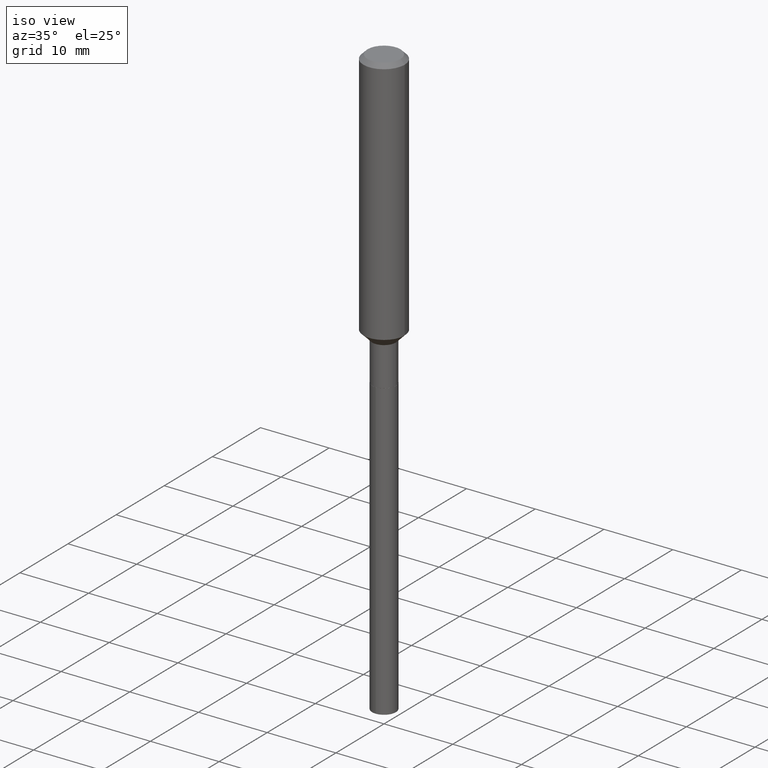
[diagram: clean part render]
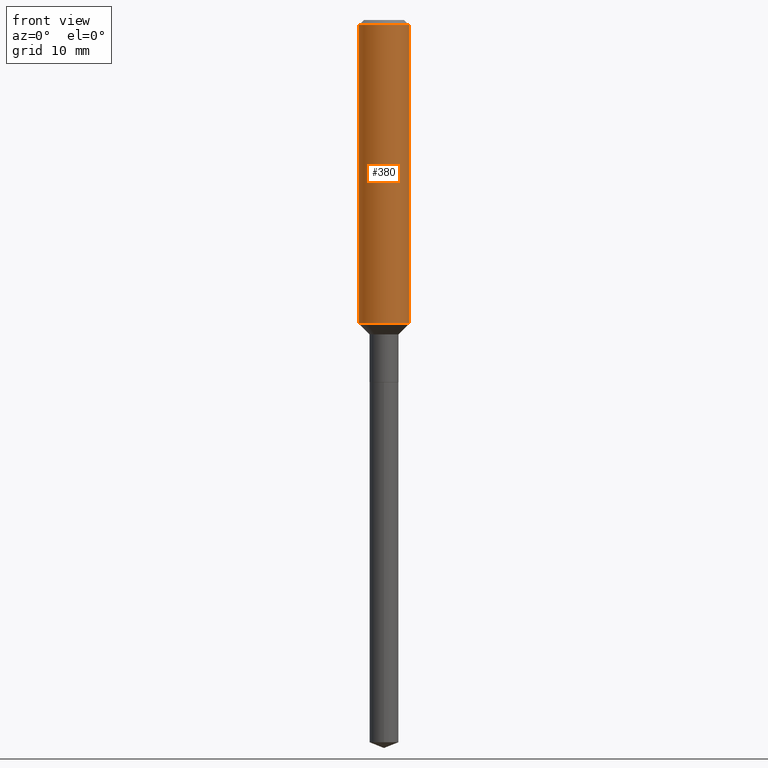
[diagram: tour spotlight — one face highlighted and labeled with its STEP entity id]
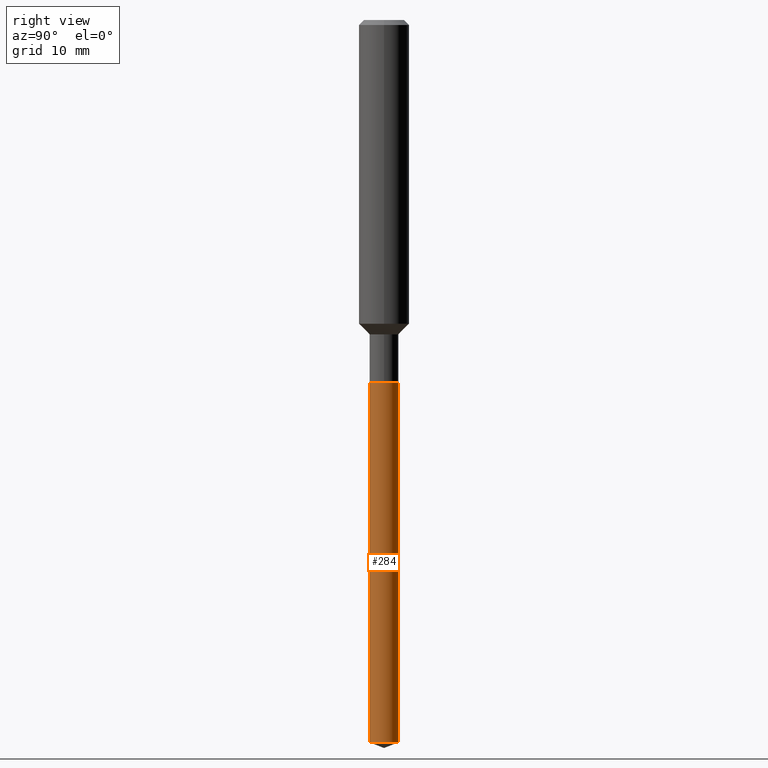
[diagram: tour spotlight — one face highlighted and labeled with its STEP entity id]
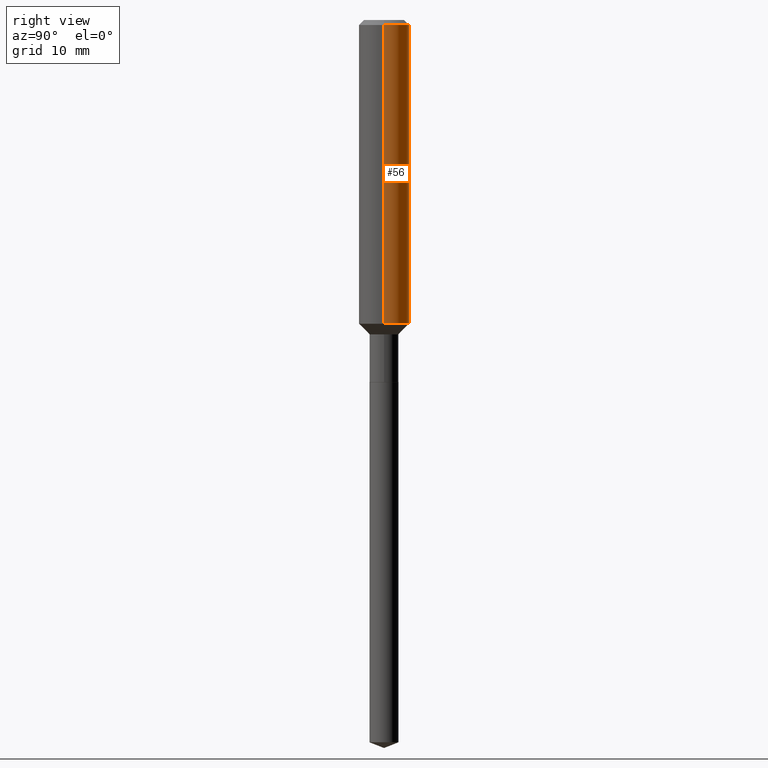
[diagram: tour spotlight — one face highlighted and labeled with its STEP entity id]
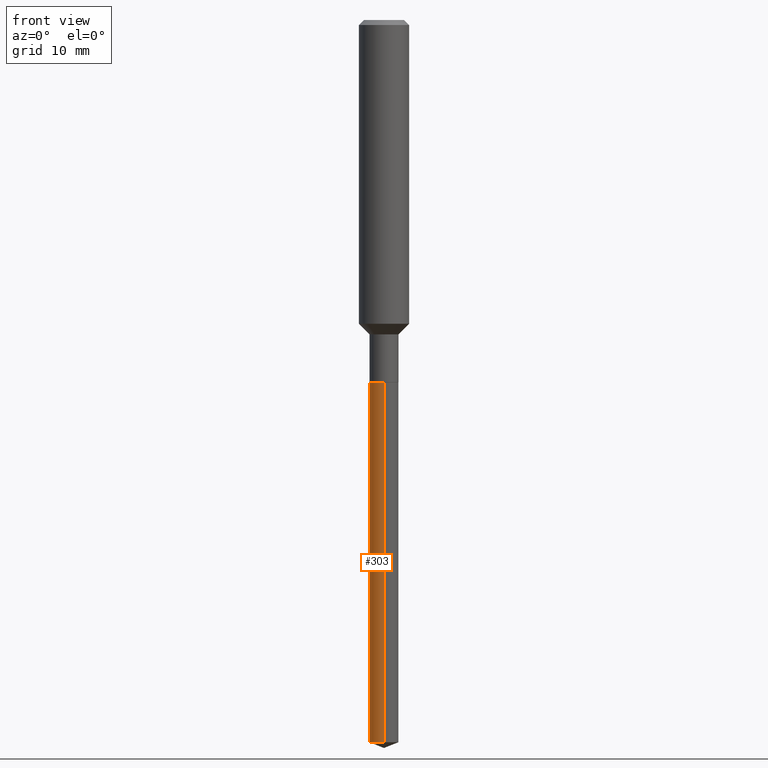
[diagram: tour spotlight — one face highlighted and labeled with its STEP entity id]
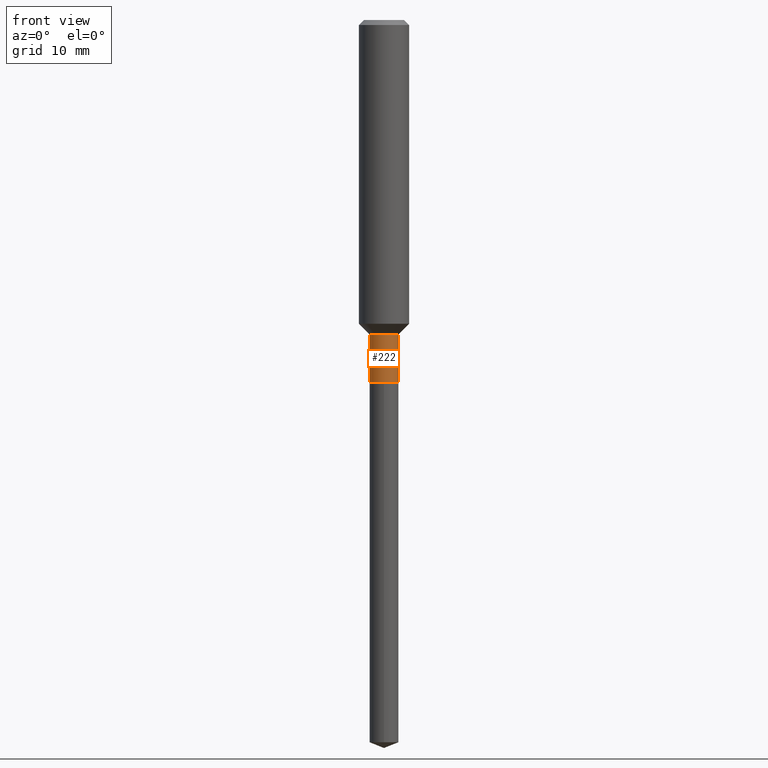
[diagram: tour spotlight — one face highlighted and labeled with its STEP entity id]
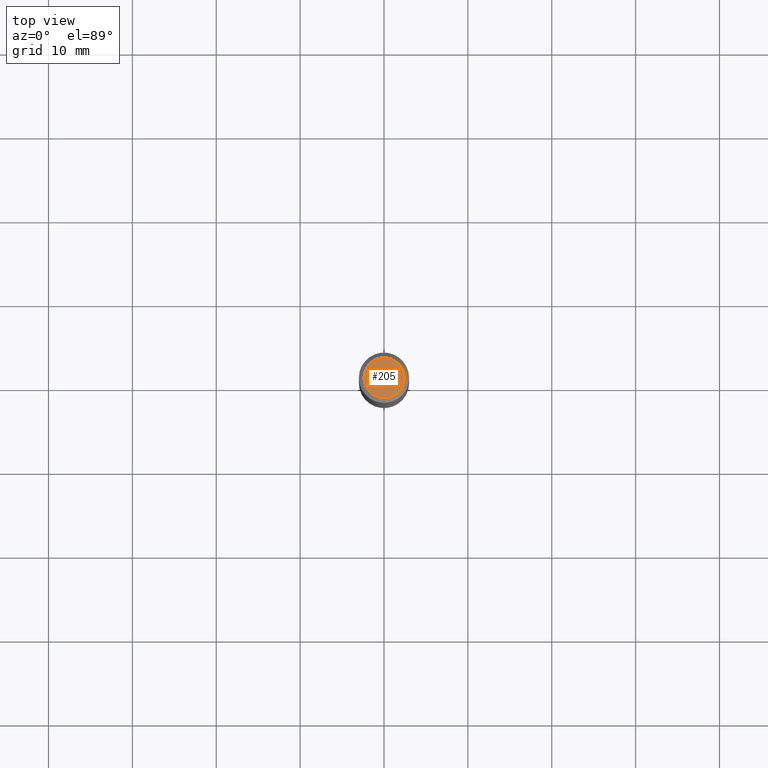
[diagram: tour spotlight — one face highlighted and labeled with its STEP entity id]
A machine part: a face-by-face anatomy tour. The part has 17 B-rep faces; the first image is the clean iso view, then the 6 largest visible faces are spotlighted one at a time (largest first), each with its STEP entity span.

Face 1 — front view, entity #380. In plain terms, the highlighted cylindrical surface (edge-blend (fillet) strip) has radius 2.9997 mm, axis along (-0, 0, 1).
Definition (entity closure, byte-faithful):
#17 = DIRECTION ( 'NONE',  ( -2.445468806185136877E-29, 3.491481338843145188E-15, 1.000000000000000000 ) ) ;
#41 = LINE ( 'NONE', #462, #325 ) ;
#50 = ORIENTED_EDGE ( 'NONE', *, *, #354, .F. ) ;
#61 = ORIENTED_EDGE ( 'NONE', *, *, #312, .T. ) ;
#64 = VECTOR ( 'NONE', #17, 39.37007874015748143 ) ;
#66 = DIRECTION ( 'NONE',  ( 1.000000000000000000, -6.982962677686263555E-15, 0.000000000000000000 ) ) ;
#87 = DIRECTION ( 'NONE',  ( -2.445468806185136597E-29, 3.491481338843145583E-15, 1.000000000000000000 ) ) ;
#102 = VERTEX_POINT ( 'NONE', #432 ) ;
#107 = AXIS2_PLACEMENT_3D ( 'NONE', #321, #167, #237 ) ;
#109 = EDGE_CURVE ( 'NONE', #466, #123, #450, .T. ) ;
#116 = DIRECTION ( 'NONE',  ( 1.000000000000000000, -6.982962677686266711E-15, 0.000000000000000000 ) ) ;
#123 = VERTEX_POINT ( 'NONE', #388 ) ;
#124 = FACE_OUTER_BOUND ( 'NONE', #270, .T. ) ;
#133 = LINE ( 'NONE', #362, #64 ) ;
#136 = CARTESIAN_POINT ( 'NONE',  ( -0.1180999999999999966, -1.690636747939508715E-15, -0.02362000000000014435 ) ) ;
#140 = AXIS2_PLACEMENT_3D ( 'NONE', #337, #210, #66 ) ;
#150 = AXIS2_PLACEMENT_3D ( 'NONE', #192, #87, #116 ) ;
#152 = EDGE_CURVE ( 'NONE', #323, #102, #291, .T. ) ;
#167 = DIRECTION ( 'NONE',  ( -2.445468806185136597E-29, 3.491481338843145583E-15, 1.000000000000000000 ) ) ;
#192 = CARTESIAN_POINT ( 'NONE',  ( 5.776197320209328408E-31, -8.246878922347560526E-17, -0.02362000000000014435 ) ) ;
#210 = DIRECTION ( 'NONE',  ( -2.445468806185136597E-29, 3.491481338843145583E-15, 1.000000000000000000 ) ) ;
#228 = CARTESIAN_POINT ( 'NONE',  ( -0.1181000000000001632, -4.137955677588221748E-15, -1.425499999999999101 ) ) ;
#237 = DIRECTION ( 'NONE',  ( 1.000000000000000000, -6.982962677686266711E-15, 4.876176775795936353E-29 ) ) ;
#270 = EDGE_LOOP ( 'NONE', ( #50, #392, #61, #394 ) ) ;
#291 = CIRCLE ( 'NONE', #140, 0.1181000000000001632 ) ;
#312 = EDGE_CURVE ( 'NONE', #102, #123, #41, .T. ) ;
#321 = CARTESIAN_POINT ( 'NONE',  ( 0.000000000000000000, 0.000000000000000000, 0.000000000000000000 ) ) ;
#323 = VERTEX_POINT ( 'NONE', #228 ) ;
#325 = VECTOR ( 'NONE', #421, 39.37007874015748143 ) ;
#337 = CARTESIAN_POINT ( 'NONE',  ( 3.486015783216909425E-29, -4.977106648520900734E-15, -1.425499999999999101 ) ) ;
#354 = EDGE_CURVE ( 'NONE', #323, #466, #133, .T. ) ;
#362 = CARTESIAN_POINT ( 'NONE',  ( -0.1181000000000000799, 8.391509709326788873E-16, -5.809262341591047988E-30 ) ) ;
#380 = ADVANCED_FACE ( 'NONE', ( #124 ), #480, .T. ) ;
#388 = CARTESIAN_POINT ( 'NONE',  ( 0.1180999999999999966, -9.071566814582237199E-16, -0.02362000000000014435 ) ) ;
#392 = ORIENTED_EDGE ( 'NONE', *, *, #152, .T. ) ;
#394 = ORIENTED_EDGE ( 'NONE', *, *, #109, .F. ) ;
#421 = DIRECTION ( 'NONE',  ( -2.445468806185136877E-29, 3.491481338843145188E-15, 1.000000000000000000 ) ) ;
#432 = CARTESIAN_POINT ( 'NONE',  ( 0.1181000000000001632, -5.801794540755649786E-15, -1.425499999999999101 ) ) ;
#450 = CIRCLE ( 'NONE', #150, 0.1180999999999999966 ) ;
#462 = CARTESIAN_POINT ( 'NONE',  ( 0.1181000000000000799, -8.246878922347486570E-16, 5.758764772215004644E-30 ) ) ;
#466 = VERTEX_POINT ( 'NONE', #136 ) ;
#480 = CYLINDRICAL_SURFACE ( 'NONE', #107, 0.1181000000000000799 ) ;

Face 2 — right view, entity #284. In plain terms, the highlighted cylindrical surface (edge-blend (fillet) strip) has radius 1.7272 mm, axis along (-0, 0, 1).
Definition (entity closure, byte-faithful):
#2 = CIRCLE ( 'NONE', #305, 0.06800000000000000488 ) ;
#7 = VECTOR ( 'NONE', #245, 39.37007874015748143 ) ;
#12 = VECTOR ( 'NONE', #85, 39.37007874015748143 ) ;
#33 = DIRECTION ( 'NONE',  ( -2.449286412765611293E-29, 3.486014308935233053E-15, 1.000000000000000000 ) ) ;
#43 = AXIS2_PLACEMENT_3D ( 'NONE', #324, #352, #224 ) ;
#59 = DIRECTION ( 'NONE',  ( -2.449286412765611293E-29, 3.486014308935233053E-15, 1.000000000000000000 ) ) ;
#85 = DIRECTION ( 'NONE',  ( -2.449286412765611293E-29, 3.486014308935233447E-15, 1.000000000000000000 ) ) ;
#88 = ORIENTED_EDGE ( 'NONE', *, *, #479, .T. ) ;
#93 = EDGE_LOOP ( 'NONE', ( #433, #88, #233, #162 ) ) ;
#94 = CYLINDRICAL_SURFACE ( 'NONE', #43, 0.06800000000000000488 ) ;
#115 = EDGE_CURVE ( 'NONE', #238, #160, #229, .T. ) ;
#127 = CARTESIAN_POINT ( 'NONE',  ( 4.831690603169513859E-16, 0.06799999999999407907, -1.699699999999999322 ) ) ;
#137 = CARTESIAN_POINT ( 'NONE',  ( -4.748414620825831994E-16, -0.06800000000001184264, -3.390214087658182773 ) ) ;
#139 = CARTESIAN_POINT ( 'NONE',  ( -4.748414620826246146E-16, -0.06800000000000594458, -1.699699999999998878 ) ) ;
#160 = VERTEX_POINT ( 'NONE', #139 ) ;
#162 = ORIENTED_EDGE ( 'NONE', *, *, #115, .F. ) ;
#173 = LINE ( 'NONE', #331, #7 ) ;
#224 = DIRECTION ( 'NONE',  ( -6.982962677686265922E-15, -1.000000000000000000, 4.017423520094504617E-15 ) ) ;
#229 = LINE ( 'NONE', #459, #12 ) ;
#233 = ORIENTED_EDGE ( 'NONE', *, *, #386, .F. ) ;
#236 = VERTEX_POINT ( 'NONE', #483 ) ;
#238 = VERTEX_POINT ( 'NONE', #137 ) ;
#241 = DIRECTION ( 'NONE',  ( -6.982962677686265922E-15, -1.000000000000000000, 4.017423520094504617E-15 ) ) ;
#245 = DIRECTION ( 'NONE',  ( -2.449286412765611293E-29, 3.486014308935233447E-15, 1.000000000000000000 ) ) ;
#276 = EDGE_CURVE ( 'NONE', #238, #236, #2, .T. ) ;
#284 = ADVANCED_FACE ( 'NONE', ( #439 ), #94, .T. ) ;
#305 = AXIS2_PLACEMENT_3D ( 'NONE', #381, #33, #322 ) ;
#322 = DIRECTION ( 'NONE',  ( -6.982962677686265922E-15, -1.000000000000000000, 0.000000000000000000 ) ) ;
#324 = CARTESIAN_POINT ( 'NONE',  ( 4.156563329872874404E-29, -5.934470831631691157E-15, -1.699699999999999100 ) ) ;
#331 = CARTESIAN_POINT ( 'NONE',  ( 4.831690603169095763E-16, 0.06799999999999406519, -1.699699999999999322 ) ) ;
#352 = DIRECTION ( 'NONE',  ( -2.449286412765611293E-29, 3.486014308935233053E-15, 1.000000000000000000 ) ) ;
#381 = CARTESIAN_POINT ( 'NONE',  ( 8.297116515362916706E-29, -1.182762713066471135E-14, -3.390214087658182773 ) ) ;
#386 = EDGE_CURVE ( 'NONE', #160, #402, #465, .T. ) ;
#395 = CARTESIAN_POINT ( 'NONE',  ( 4.156563329872874404E-29, -5.934470831631691157E-15, -1.699699999999999100 ) ) ;
#402 = VERTEX_POINT ( 'NONE', #127 ) ;
#433 = ORIENTED_EDGE ( 'NONE', *, *, #276, .T. ) ;
#439 = FACE_OUTER_BOUND ( 'NONE', #93, .T. ) ;
#444 = AXIS2_PLACEMENT_3D ( 'NONE', #395, #59, #241 ) ;
#459 = CARTESIAN_POINT ( 'NONE',  ( -4.748414620826245160E-16, -0.06800000000000593070, -1.699699999999998878 ) ) ;
#465 = CIRCLE ( 'NONE', #444, 0.06800000000000000488 ) ;
#479 = EDGE_CURVE ( 'NONE', #236, #402, #173, .T. ) ;
#483 = CARTESIAN_POINT ( 'NONE',  ( 4.831690603169511887E-16, 0.06799999999998819489, -3.390214087658182773 ) ) ;

Face 3 — right view, entity #56. In plain terms, the highlighted cylindrical surface (edge-blend (fillet) strip) has radius 2.9997 mm, axis along (-0, 0, 1).
Definition (entity closure, byte-faithful):
#15 = CARTESIAN_POINT ( 'NONE',  ( 3.486015783216909425E-29, -4.977106648520900734E-15, -1.425499999999999101 ) ) ;
#17 = DIRECTION ( 'NONE',  ( -2.445468806185136877E-29, 3.491481338843145188E-15, 1.000000000000000000 ) ) ;
#41 = LINE ( 'NONE', #462, #325 ) ;
#47 = EDGE_LOOP ( 'NONE', ( #206, #96, #239, #265 ) ) ;
#56 = ADVANCED_FACE ( 'NONE', ( #189 ), #464, .T. ) ;
#64 = VECTOR ( 'NONE', #17, 39.37007874015748143 ) ;
#80 = AXIS2_PLACEMENT_3D ( 'NONE', #15, #473, #170 ) ;
#96 = ORIENTED_EDGE ( 'NONE', *, *, #354, .T. ) ;
#102 = VERTEX_POINT ( 'NONE', #432 ) ;
#114 = DIRECTION ( 'NONE',  ( -2.445468806185136597E-29, 3.491481338843145583E-15, 1.000000000000000000 ) ) ;
#123 = VERTEX_POINT ( 'NONE', #388 ) ;
#125 = DIRECTION ( 'NONE',  ( 1.000000000000000000, -6.982962677686266711E-15, 4.876176775795936353E-29 ) ) ;
#133 = LINE ( 'NONE', #362, #64 ) ;
#136 = CARTESIAN_POINT ( 'NONE',  ( -0.1180999999999999966, -1.690636747939508715E-15, -0.02362000000000014435 ) ) ;
#138 = DIRECTION ( 'NONE',  ( 1.000000000000000000, -6.982962677686266711E-15, 0.000000000000000000 ) ) ;
#158 = CIRCLE ( 'NONE', #409, 0.1180999999999999966 ) ;
#170 = DIRECTION ( 'NONE',  ( 1.000000000000000000, -6.982962677686263555E-15, 0.000000000000000000 ) ) ;
#188 = AXIS2_PLACEMENT_3D ( 'NONE', #350, #114, #125 ) ;
#189 = FACE_OUTER_BOUND ( 'NONE', #47, .T. ) ;
#206 = ORIENTED_EDGE ( 'NONE', *, *, #422, .T. ) ;
#212 = CARTESIAN_POINT ( 'NONE',  ( 5.776197320209328408E-31, -8.246878922347560526E-17, -0.02362000000000014435 ) ) ;
#228 = CARTESIAN_POINT ( 'NONE',  ( -0.1181000000000001632, -4.137955677588221748E-15, -1.425499999999999101 ) ) ;
#239 = ORIENTED_EDGE ( 'NONE', *, *, #435, .F. ) ;
#265 = ORIENTED_EDGE ( 'NONE', *, *, #312, .F. ) ;
#267 = CIRCLE ( 'NONE', #80, 0.1181000000000001632 ) ;
#312 = EDGE_CURVE ( 'NONE', #102, #123, #41, .T. ) ;
#323 = VERTEX_POINT ( 'NONE', #228 ) ;
#325 = VECTOR ( 'NONE', #421, 39.37007874015748143 ) ;
#350 = CARTESIAN_POINT ( 'NONE',  ( 0.000000000000000000, 0.000000000000000000, 0.000000000000000000 ) ) ;
#354 = EDGE_CURVE ( 'NONE', #323, #466, #133, .T. ) ;
#362 = CARTESIAN_POINT ( 'NONE',  ( -0.1181000000000000799, 8.391509709326788873E-16, -5.809262341591047988E-30 ) ) ;
#388 = CARTESIAN_POINT ( 'NONE',  ( 0.1180999999999999966, -9.071566814582237199E-16, -0.02362000000000014435 ) ) ;
#409 = AXIS2_PLACEMENT_3D ( 'NONE', #212, #470, #138 ) ;
#421 = DIRECTION ( 'NONE',  ( -2.445468806185136877E-29, 3.491481338843145188E-15, 1.000000000000000000 ) ) ;
#422 = EDGE_CURVE ( 'NONE', #102, #323, #267, .T. ) ;
#432 = CARTESIAN_POINT ( 'NONE',  ( 0.1181000000000001632, -5.801794540755649786E-15, -1.425499999999999101 ) ) ;
#435 = EDGE_CURVE ( 'NONE', #123, #466, #158, .T. ) ;
#462 = CARTESIAN_POINT ( 'NONE',  ( 0.1181000000000000799, -8.246878922347486570E-16, 5.758764772215004644E-30 ) ) ;
#464 = CYLINDRICAL_SURFACE ( 'NONE', #188, 0.1181000000000000799 ) ;
#466 = VERTEX_POINT ( 'NONE', #136 ) ;
#470 = DIRECTION ( 'NONE',  ( -2.445468806185136597E-29, 3.491481338843145583E-15, 1.000000000000000000 ) ) ;
#473 = DIRECTION ( 'NONE',  ( -2.445468806185136597E-29, 3.491481338843145583E-15, 1.000000000000000000 ) ) ;

Face 4 — front view, entity #303. In plain terms, the highlighted cylindrical surface (edge-blend (fillet) strip) has radius 1.7272 mm, axis along (-0, 0, 1).
Definition (entity closure, byte-faithful):
#5 = EDGE_CURVE ( 'NONE', #236, #238, #112, .T. ) ;
#7 = VECTOR ( 'NONE', #245, 39.37007874015748143 ) ;
#12 = VECTOR ( 'NONE', #85, 39.37007874015748143 ) ;
#85 = DIRECTION ( 'NONE',  ( -2.449286412765611293E-29, 3.486014308935233447E-15, 1.000000000000000000 ) ) ;
#86 = ORIENTED_EDGE ( 'NONE', *, *, #479, .F. ) ;
#105 = AXIS2_PLACEMENT_3D ( 'NONE', #385, #391, #271 ) ;
#112 = CIRCLE ( 'NONE', #397, 0.06800000000000000488 ) ;
#115 = EDGE_CURVE ( 'NONE', #238, #160, #229, .T. ) ;
#127 = CARTESIAN_POINT ( 'NONE',  ( 4.831690603169513859E-16, 0.06799999999999407907, -1.699699999999999322 ) ) ;
#137 = CARTESIAN_POINT ( 'NONE',  ( -4.748414620825831994E-16, -0.06800000000001184264, -3.390214087658182773 ) ) ;
#139 = CARTESIAN_POINT ( 'NONE',  ( -4.748414620826246146E-16, -0.06800000000000594458, -1.699699999999998878 ) ) ;
#160 = VERTEX_POINT ( 'NONE', #139 ) ;
#172 = EDGE_CURVE ( 'NONE', #402, #160, #207, .T. ) ;
#173 = LINE ( 'NONE', #331, #7 ) ;
#207 = CIRCLE ( 'NONE', #420, 0.06800000000000000488 ) ;
#229 = LINE ( 'NONE', #459, #12 ) ;
#236 = VERTEX_POINT ( 'NONE', #483 ) ;
#238 = VERTEX_POINT ( 'NONE', #137 ) ;
#245 = DIRECTION ( 'NONE',  ( -2.449286412765611293E-29, 3.486014308935233447E-15, 1.000000000000000000 ) ) ;
#247 = CARTESIAN_POINT ( 'NONE',  ( 4.156563329872874404E-29, -5.934470831631691157E-15, -1.699699999999999100 ) ) ;
#262 = DIRECTION ( 'NONE',  ( -6.982962677686265922E-15, -1.000000000000000000, 0.000000000000000000 ) ) ;
#271 = DIRECTION ( 'NONE',  ( -6.982962677686265922E-15, -1.000000000000000000, 4.017423520094504617E-15 ) ) ;
#274 = DIRECTION ( 'NONE',  ( -2.449286412765611293E-29, 3.486014308935233053E-15, 1.000000000000000000 ) ) ;
#294 = DIRECTION ( 'NONE',  ( -6.982962677686265922E-15, -1.000000000000000000, 4.017423520094504617E-15 ) ) ;
#303 = ADVANCED_FACE ( 'NONE', ( #467 ), #457, .T. ) ;
#311 = ORIENTED_EDGE ( 'NONE', *, *, #5, .T. ) ;
#331 = CARTESIAN_POINT ( 'NONE',  ( 4.831690603169095763E-16, 0.06799999999999406519, -1.699699999999999322 ) ) ;
#333 = EDGE_LOOP ( 'NONE', ( #86, #311, #338, #359 ) ) ;
#338 = ORIENTED_EDGE ( 'NONE', *, *, #115, .T. ) ;
#358 = CARTESIAN_POINT ( 'NONE',  ( 8.297116515362916706E-29, -1.182762713066471135E-14, -3.390214087658182773 ) ) ;
#359 = ORIENTED_EDGE ( 'NONE', *, *, #172, .F. ) ;
#385 = CARTESIAN_POINT ( 'NONE',  ( 4.156563329872874404E-29, -5.934470831631691157E-15, -1.699699999999999100 ) ) ;
#391 = DIRECTION ( 'NONE',  ( -2.449286412765611293E-29, 3.486014308935233053E-15, 1.000000000000000000 ) ) ;
#397 = AXIS2_PLACEMENT_3D ( 'NONE', #358, #274, #262 ) ;
#402 = VERTEX_POINT ( 'NONE', #127 ) ;
#420 = AXIS2_PLACEMENT_3D ( 'NONE', #247, #440, #294 ) ;
#440 = DIRECTION ( 'NONE',  ( -2.449286412765611293E-29, 3.486014308935233053E-15, 1.000000000000000000 ) ) ;
#457 = CYLINDRICAL_SURFACE ( 'NONE', #105, 0.06800000000000000488 ) ;
#459 = CARTESIAN_POINT ( 'NONE',  ( -4.748414620826245160E-16, -0.06800000000000593070, -1.699699999999998878 ) ) ;
#467 = FACE_OUTER_BOUND ( 'NONE', #333, .T. ) ;
#479 = EDGE_CURVE ( 'NONE', #236, #402, #173, .T. ) ;
#483 = CARTESIAN_POINT ( 'NONE',  ( 4.831690603169511887E-16, 0.06799999999998819489, -3.390214087658182773 ) ) ;

Face 5 — front view, entity #222. In plain terms, the highlighted cylindrical surface (edge-blend (fillet) strip) has radius 1.7272 mm, axis along (-0, 0, 1).
Definition (entity closure, byte-faithful):
#6 = DIRECTION ( 'NONE',  ( -2.445468806185136877E-29, 3.491481338843145188E-15, 1.000000000000000000 ) ) ;
#9 = ORIENTED_EDGE ( 'NONE', *, *, #343, .T. ) ;
#23 = CIRCLE ( 'NONE', #147, 0.06799999999999997713 ) ;
#51 = LINE ( 'NONE', #234, #434 ) ;
#58 = ORIENTED_EDGE ( 'NONE', *, *, #300, .F. ) ;
#62 = CARTESIAN_POINT ( 'NONE',  ( 0.06799999999999997713, -5.626871325679608817E-15, -1.475599999999999135 ) ) ;
#63 = CARTESIAN_POINT ( 'NONE',  ( 0.000000000000000000, 0.000000000000000000, 0.000000000000000000 ) ) ;
#68 = EDGE_LOOP ( 'NONE', ( #58, #190, #9, #156 ) ) ;
#103 = CARTESIAN_POINT ( 'NONE',  ( 4.155340595469782163E-29, -5.932725090962269653E-15, -1.699199999999999156 ) ) ;
#121 = VERTEX_POINT ( 'NONE', #272 ) ;
#144 = CYLINDRICAL_SURFACE ( 'NONE', #347, 0.06800000000000000488 ) ;
#147 = AXIS2_PLACEMENT_3D ( 'NONE', #263, #458, #307 ) ;
#156 = ORIENTED_EDGE ( 'NONE', *, *, #340, .F. ) ;
#187 = EDGE_CURVE ( 'NONE', #407, #282, #387, .T. ) ;
#190 = ORIENTED_EDGE ( 'NONE', *, *, #187, .T. ) ;
#201 = DIRECTION ( 'NONE',  ( -2.445468806185136877E-29, 3.491481338843145188E-15, 1.000000000000000000 ) ) ;
#214 = DIRECTION ( 'NONE',  ( 1.000000000000000000, -6.982962677686260400E-15, 0.000000000000000000 ) ) ;
#222 = ADVANCED_FACE ( 'NONE', ( #437 ), #144, .T. ) ;
#234 = CARTESIAN_POINT ( 'NONE',  ( -0.06800000000000000488, 4.831690603168681611E-16, -3.344875861373336055E-30 ) ) ;
#254 = DIRECTION ( 'NONE',  ( -2.445468806185136597E-29, 3.491481338843145583E-15, 1.000000000000000000 ) ) ;
#263 = CARTESIAN_POINT ( 'NONE',  ( 3.608533770406785376E-29, -5.152029863596943281E-15, -1.475599999999999135 ) ) ;
#268 = LINE ( 'NONE', #355, #463 ) ;
#272 = CARTESIAN_POINT ( 'NONE',  ( -0.06799999999999997713, -5.059208416962737911E-15, -1.475599999999999135 ) ) ;
#280 = CARTESIAN_POINT ( 'NONE',  ( -0.06800000000000001876, -5.059208416962737911E-15, -1.699199999999999156 ) ) ;
#281 = DIRECTION ( 'NONE',  ( -2.445468806185136597E-29, 3.491481338843145583E-15, 1.000000000000000000 ) ) ;
#282 = VERTEX_POINT ( 'NONE', #283 ) ;
#283 = CARTESIAN_POINT ( 'NONE',  ( 0.06800000000000000488, -6.407566553044935190E-15, -1.699199999999999156 ) ) ;
#300 = EDGE_CURVE ( 'NONE', #407, #121, #51, .T. ) ;
#302 = AXIS2_PLACEMENT_3D ( 'NONE', #103, #281, #214 ) ;
#307 = DIRECTION ( 'NONE',  ( 1.000000000000000000, -6.982962677686262766E-15, 0.000000000000000000 ) ) ;
#340 = EDGE_CURVE ( 'NONE', #121, #364, #23, .T. ) ;
#343 = EDGE_CURVE ( 'NONE', #282, #364, #268, .T. ) ;
#347 = AXIS2_PLACEMENT_3D ( 'NONE', #63, #254, #441 ) ;
#355 = CARTESIAN_POINT ( 'NONE',  ( 0.06800000000000000488, -4.748414620826661284E-16, 3.315800207541236003E-30 ) ) ;
#364 = VERTEX_POINT ( 'NONE', #62 ) ;
#387 = CIRCLE ( 'NONE', #302, 0.06800000000000000488 ) ;
#407 = VERTEX_POINT ( 'NONE', #280 ) ;
#434 = VECTOR ( 'NONE', #6, 39.37007874015748143 ) ;
#437 = FACE_OUTER_BOUND ( 'NONE', #68, .T. ) ;
#441 = DIRECTION ( 'NONE',  ( 1.000000000000000000, -6.982962677686265922E-15, 4.876176775795934672E-29 ) ) ;
#458 = DIRECTION ( 'NONE',  ( -2.445468806185136597E-29, 3.491481338843145583E-15, 1.000000000000000000 ) ) ;
#463 = VECTOR ( 'NONE', #201, 39.37007874015748143 ) ;

Face 6 — top view, entity #205. In plain terms, the highlighted planar face has unit normal (0, -0, -1).
Definition (entity closure, byte-faithful):
#20 = ORIENTED_EDGE ( 'NONE', *, *, #246, .T. ) ;
#22 = PLANE ( 'NONE',  #198 ) ;
#44 = AXIS2_PLACEMENT_3D ( 'NONE', #177, #366, #248 ) ;
#53 = ORIENTED_EDGE ( 'NONE', *, *, #191, .T. ) ;
#99 = CIRCLE ( 'NONE', #44, 0.09447999999999998066 ) ;
#129 = CARTESIAN_POINT ( 'NONE',  ( 0.09447999999999998066, -7.704367267948738690E-16, -2.700101262759583929E-17 ) ) ;
#159 = VERTEX_POINT ( 'NONE', #485 ) ;
#169 = DIRECTION ( 'NONE',  ( -1.000000000000000000, 6.982962677686265922E-15, -4.876176775795935793E-29 ) ) ;
#177 = CARTESIAN_POINT ( 'NONE',  ( 6.603013411620882309E-46, -9.427353171913646324E-32, -2.700101262760083747E-17 ) ) ;
#191 = EDGE_CURVE ( 'NONE', #211, #159, #99, .T. ) ;
#198 = AXIS2_PLACEMENT_3D ( 'NONE', #449, #405, #169 ) ;
#205 = ADVANCED_FACE ( 'NONE', ( #327 ), #22, .F. ) ;
#211 = VERTEX_POINT ( 'NONE', #129 ) ;
#217 = CARTESIAN_POINT ( 'NONE',  ( 6.603013411620882309E-46, -9.427353171913646324E-32, -2.700101262760083747E-17 ) ) ;
#240 = AXIS2_PLACEMENT_3D ( 'NONE', #217, #481, #415 ) ;
#246 = EDGE_CURVE ( 'NONE', #159, #211, #368, .T. ) ;
#248 = DIRECTION ( 'NONE',  ( 1.000000000000000000, -6.982962677686267499E-15, 4.875432709231658792E-29 ) ) ;
#327 = FACE_OUTER_BOUND ( 'NONE', #413, .T. ) ;
#366 = DIRECTION ( 'NONE',  ( -2.445468806185136597E-29, 3.491481338843145583E-15, 1.000000000000000000 ) ) ;
#368 = CIRCLE ( 'NONE', #240, 0.09447999999999998066 ) ;
#405 = DIRECTION ( 'NONE',  ( 2.438088387897960049E-29, -3.491481338843145188E-15, -1.000000000000000000 ) ) ;
#413 = EDGE_LOOP ( 'NONE', ( #20, #53 ) ) ;
#415 = DIRECTION ( 'NONE',  ( 1.000000000000000000, -6.982962677686267499E-15, 4.875432709231658792E-29 ) ) ;
#449 = CARTESIAN_POINT ( 'NONE',  ( 3.301506705810441154E-46, -4.713676585956823162E-32, -1.350050631380041873E-17 ) ) ;
#481 = DIRECTION ( 'NONE',  ( -2.445468806185136597E-29, 3.491481338843145583E-15, 1.000000000000000000 ) ) ;
#485 = CARTESIAN_POINT ( 'NONE',  ( -0.09447999999999998066, 7.009847083995354710E-16, -2.700101262760559836E-17 ) ) ;